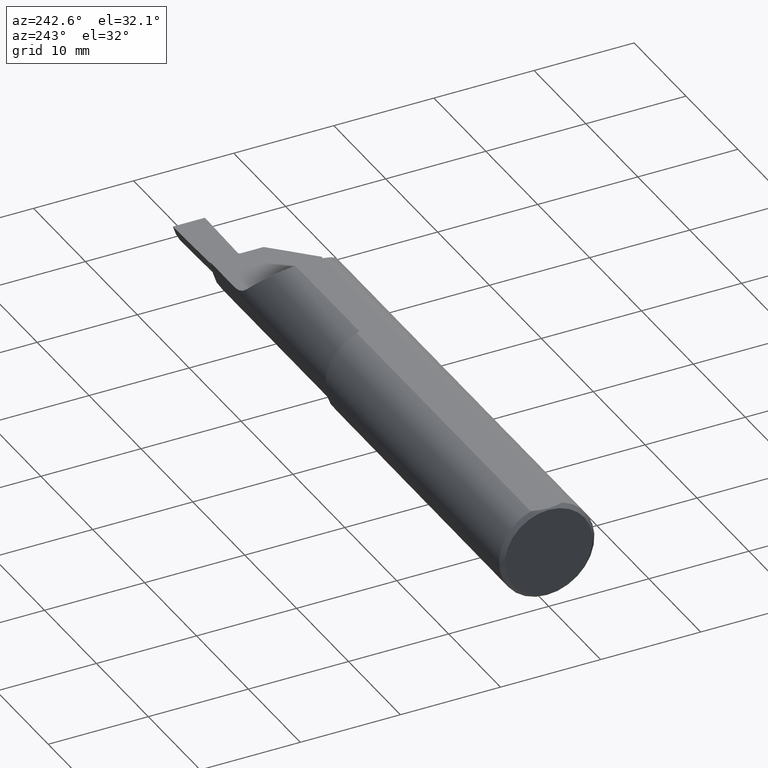
[diagram: clean part render]
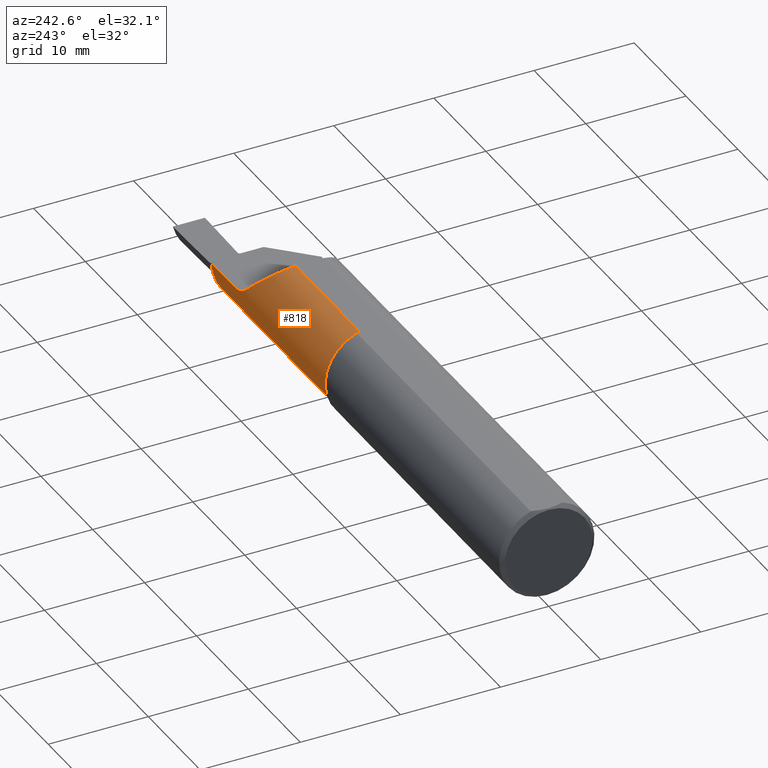
[diagram: same view with one face highlighted and labeled with its STEP entity id]
A machine part, auxiliary view. The second image highlights one B-rep face of the part: STEP entity #818.
In plain terms, the highlighted cylindrical surface (partial cylindrical patch) has radius 4.7625 mm, axis along (-1, -0, -0).
Its self-contained STEP definition (entity closure, byte-faithful):
#12 =( BOUNDED_CURVE ( )  B_SPLINE_CURVE ( 3, ( #585, #324, #521, #732 ),
 .UNSPECIFIED., .F., .F. ) 
 B_SPLINE_CURVE_WITH_KNOTS ( ( 4, 4 ),
 ( 0.2058125682894697273, 1.524309266450647016 ),
 .UNSPECIFIED. ) 
 CURVE ( )  GEOMETRIC_REPRESENTATION_ITEM ( )  RATIONAL_B_SPLINE_CURVE ( ( 1.000000000000000000, 0.8603019054232806662, 0.8603019054232806662, 1.000000000000000000 ) ) 
 REPRESENTATION_ITEM ( '' )  );
#17 = CARTESIAN_POINT ( 'NONE',  ( 1.988965638552542048, 0.1736665399885003735, 0.01662166336216465423 ) ) ;
#27 = LINE ( 'NONE', #706, #678 ) ;
#35 = LINE ( 'NONE', #567, #857 ) ;
#37 = VERTEX_POINT ( 'NONE', #488 ) ;
#47 = CARTESIAN_POINT ( 'NONE',  ( 2.225000000000020961, 0.1737315719203324227, -0.01520668941494147941 ) ) ;
#49 = CARTESIAN_POINT ( 'NONE',  ( 0.9958286716179119979, -0.01315076164021992781, 0.000000000000000000 ) ) ;
#64 = CARTESIAN_POINT ( 'NONE',  ( 2.224476490270001605, 0.1737269911545019085, -0.01526298465347420211 ) ) ;
#73 = CARTESIAN_POINT ( 'NONE',  ( 2.221522222016079962, 0.1730273118114304398, -0.02231477987633340154 ) ) ;
#75 = DIRECTION ( 'NONE',  ( 1.000000000000000000, 0.000000000000000000, 0.000000000000000000 ) ) ;
#78 = LINE ( 'NONE', #670, #344 ) ;
#98 =( BOUNDED_CURVE ( )  B_SPLINE_CURVE ( 3, ( #532, #210, #465, #677 ),
 .UNSPECIFIED., .F., .F. ) 
 B_SPLINE_CURVE_WITH_KNOTS ( ( 4, 4 ),
 ( 4.908913714375442439, 5.936585895212762587 ),
 .UNSPECIFIED. ) 
 CURVE ( )  GEOMETRIC_REPRESENTATION_ITEM ( )  RATIONAL_B_SPLINE_CURVE ( ( 1.000000000000000000, 0.9139102658081098562, 0.9139102658081098562, 1.000000000000000000 ) ) 
 REPRESENTATION_ITEM ( '' )  );
#99 = FACE_OUTER_BOUND ( 'NONE', #648, .T. ) ;
#101 = CARTESIAN_POINT ( 'NONE',  ( 1.340000000000000080, -0.01315076164021992781, 0.000000000000000000 ) ) ;
#131 = CARTESIAN_POINT ( 'NONE',  ( 2.224075113363942258, 0.1736934872265989971, -0.01567319864418825412 ) ) ;
#137 = ORIENTED_EDGE ( 'NONE', *, *, #590, .T. ) ;
#150 = CARTESIAN_POINT ( 'NONE',  ( 1.963388347648318710, 0.1707400671470789555, 0.03661165235168143545 ) ) ;
#158 = CARTESIAN_POINT ( 'NONE',  ( 1.340000000000000080, 0.05054325299224017576, 0.1763500000000000068 ) ) ;
#160 = DIRECTION ( 'NONE',  ( 0.000000000000000000, 0.000000000000000000, 1.000000000000000000 ) ) ;
#173 = CARTESIAN_POINT ( 'NONE',  ( 2.225000000000000089, 0.1743492383597801954, 0.000000000000000000 ) ) ;
#210 = CARTESIAN_POINT ( 'NONE',  ( 1.897454588124415586, 0.1576130183548815344, 0.1025454118755840249 ) ) ;
#221 = VERTEX_POINT ( 'NONE', #647 ) ;
#235 = ORIENTED_EDGE ( 'NONE', *, *, #524, .T. ) ;
#238 = VERTEX_POINT ( 'NONE', #661 ) ;
#244 = DIRECTION ( 'NONE',  ( -1.000000000000000000, -0.000000000000000000, -0.000000000000000000 ) ) ;
#265 = CARTESIAN_POINT ( 'NONE',  ( 2.222298499799074012, 0.1733515975356395844, -0.01934201723226082817 ) ) ;
#268 = VERTEX_POINT ( 'NONE', #158 ) ;
#269 = CARTESIAN_POINT ( 'NONE',  ( 1.963388347648318710, 0.1707400671470789555, 0.03661165235168143545 ) ) ;
#275 = VERTEX_POINT ( 'NONE', #150 ) ;
#293 = ORIENTED_EDGE ( 'NONE', *, *, #739, .F. ) ;
#303 = CARTESIAN_POINT ( 'NONE',  ( 2.225000000000020961, 0.1737315719203324227, -0.01520668941494147941 ) ) ;
#310 = DIRECTION ( 'NONE',  ( -1.000000000000000000, -0.000000000000000000, -0.000000000000000000 ) ) ;
#324 = CARTESIAN_POINT ( 'NONE',  ( 2.220570820707118198, 0.1522041806097133576, -0.1254379557757593355 ) ) ;
#339 = CARTESIAN_POINT ( 'NONE',  ( 2.011402846495882635, 0.1742657643842316917, 0.006416841385945341175 ) ) ;
#344 = VECTOR ( 'NONE', #75, 39.37007874015748143 ) ;
#352 = VERTEX_POINT ( 'NONE', #831 ) ;
#353 = EDGE_CURVE ( 'NONE', #37, #221, #35, .T. ) ;
#378 = CARTESIAN_POINT ( 'NONE',  ( 2.220253349435743928, 0.1703920975656307568, -0.03831799622294082552 ) ) ;
#391 = VERTEX_POINT ( 'NONE', #826 ) ;
#396 = CARTESIAN_POINT ( 'NONE',  ( 2.220238758154331915, 0.1712280315178650869, -0.03431388006802354312 ) ) ;
#397 = ORIENTED_EDGE ( 'NONE', *, *, #688, .T. ) ;
#403 = CARTESIAN_POINT ( 'NONE',  ( 1.975456747076115072, 0.1726394736848242961, 0.02567045653326192542 ) ) ;
#411 = ORIENTED_EDGE ( 'NONE', *, *, #741, .T. ) ;
#412 = CARTESIAN_POINT ( 'NONE',  ( 2.019197208109889896, 0.1743125433629941212, 0.004042964882075225815 ) ) ;
#435 = CYLINDRICAL_SURFACE ( 'NONE', #445, 0.1875000000000001110 ) ;
#441 = EDGE_CURVE ( 'NONE', #352, #477, #27, .T. ) ;
#442 = AXIS2_PLACEMENT_3D ( 'NONE', #101, #244, #501 ) ;
#443 = CARTESIAN_POINT ( 'NONE',  ( 2.221193869122648934, 0.1727775063380640463, -0.02431051541404595506 ) ) ;
#445 = AXIS2_PLACEMENT_3D ( 'NONE', #49, #310, #505 ) ;
#452 = ORIENTED_EDGE ( 'NONE', *, *, #473, .F. ) ;
#456 = ORIENTED_EDGE ( 'NONE', *, *, #353, .T. ) ;
#465 = CARTESIAN_POINT ( 'NONE',  ( 1.846487386027261035, 0.1137732605392144519, 0.1535126139727385208 ) ) ;
#470 = VERTEX_POINT ( 'NONE', #303 ) ;
#473 = EDGE_CURVE ( 'NONE', #268, #221, #507, .T. ) ;
#477 = VERTEX_POINT ( 'NONE', #173 ) ;
#488 = CARTESIAN_POINT ( 'NONE',  ( 2.223305012754634102, -0.004437576883722572918, -0.1872974383471384674 ) ) ;
#499 = EDGE_CURVE ( 'NONE', #477, #470, #666, .T. ) ;
#501 = DIRECTION ( 'NONE',  ( 0.000000000000000000, 0.000000000000000000, 1.000000000000000000 ) ) ;
#505 = DIRECTION ( 'NONE',  ( 0.000000000000000000, 0.000000000000000000, 1.000000000000000000 ) ) ;
#507 = CIRCLE ( 'NONE', #442, 0.1875000000000001110 ) ;
#512 = B_SPLINE_CURVE_WITH_KNOTS ( 'NONE', 3,
 ( #269, #601, #403, #17, #802, #339, #412, #809, #745, #665 ),
 .UNSPECIFIED., .F., .F.,
 ( 4, 2, 2, 2, 4 ),
 ( 0.000000000000000000, 0.0006203411018093670914, 0.001240682203618734183, 0.001861023305428101274, 0.002481364407237468366 ),
 .UNSPECIFIED. ) ;
#520 = CARTESIAN_POINT ( 'NONE',  ( 2.222598177177773415, 0.1734499980872878377, -0.01836535642658498543 ) ) ;
#521 = CARTESIAN_POINT ( 'NONE',  ( 2.221753220862091815, 0.08446452109900753902, -0.1831616615217846189 ) ) ;
#524 = EDGE_CURVE ( 'NONE', #470, #238, #764, .T. ) ;
#532 = CARTESIAN_POINT ( 'NONE',  ( 1.963388347648318710, 0.1707400671470789555, 0.03661165235168143545 ) ) ;
#554 = DIRECTION ( 'NONE',  ( -1.000000000000000000, -0.000000000000000000, -0.000000000000000000 ) ) ;
#557 = ORIENTED_EDGE ( 'NONE', *, *, #499, .T. ) ;
#562 = DIRECTION ( 'NONE',  ( 1.000000000000000000, 0.000000000000000000, 0.000000000000000000 ) ) ;
#567 = CARTESIAN_POINT ( 'NONE',  ( 1.782499999999999973, -0.004437576883793249889, -0.1872974383471392168 ) ) ;
#585 = CARTESIAN_POINT ( 'NONE',  ( 2.220253349435743928, 0.1703920975656307568, -0.03831799622294082552 ) ) ;
#590 = EDGE_CURVE ( 'NONE', #238, #37, #12, .T. ) ;
#601 = CARTESIAN_POINT ( 'NONE',  ( 1.969175886172399359, 0.1718923342275688881, 0.03082411382760028365 ) ) ;
#603 = CARTESIAN_POINT ( 'NONE',  ( 2.220429750505789723, 0.1719280929418138815, -0.03030438184498625981 ) ) ;
#647 = CARTESIAN_POINT ( 'NONE',  ( 1.340000000000000080, -0.004437576883793904747, -0.1872974383471392446 ) ) ;
#648 = EDGE_LOOP ( 'NONE', ( #411, #293, #397, #748, #557, #235, #137, #456, #452 ) ) ;
#661 = CARTESIAN_POINT ( 'NONE',  ( 2.220253349435743928, 0.1703920975656307568, -0.03831799622294082552 ) ) ;
#665 = CARTESIAN_POINT ( 'NONE',  ( 2.051776695296636976, 0.1743492383597801954, 0.000000000000000000 ) ) ;
#666 = CIRCLE ( 'NONE', #782, 0.1875000000000001110 ) ;
#668 = CARTESIAN_POINT ( 'NONE',  ( 2.223221956714867442, 0.1735808037041218221, -0.01696444711570428351 ) ) ;
#670 = CARTESIAN_POINT ( 'NONE',  ( 0.9958286716179119979, 0.05054325299224023127, 0.1763499999999999790 ) ) ;
#677 = CARTESIAN_POINT ( 'NONE',  ( 1.823649999999999771, 0.05054325299224035617, 0.1763499999999999790 ) ) ;
#678 = VECTOR ( 'NONE', #562, 39.37007874015748143 ) ;
#688 = EDGE_CURVE ( 'NONE', #275, #352, #512, .T. ) ;
#706 = CARTESIAN_POINT ( 'NONE',  ( 0.9958286716179119979, 0.1743492383597801954, 0.000000000000000000 ) ) ;
#732 = CARTESIAN_POINT ( 'NONE',  ( 2.223305012754634102, -0.004437576883722572918, -0.1872974383471384674 ) ) ;
#734 = CARTESIAN_POINT ( 'NONE',  ( 2.223461218693192354, 0.1736222206641906685, -0.01650077487460190409 ) ) ;
#739 = EDGE_CURVE ( 'NONE', #275, #391, #98, .T. ) ;
#741 = EDGE_CURVE ( 'NONE', #268, #391, #78, .T. ) ;
#745 = CARTESIAN_POINT ( 'NONE',  ( 2.043518208465806119, 0.1743492383597801954, 2.337677543406552558E-17 ) ) ;
#748 = ORIENTED_EDGE ( 'NONE', *, *, #441, .T. ) ;
#760 = DIRECTION ( 'NONE',  ( -1.000000000000000000, -0.000000000000000000, -0.000000000000000000 ) ) ;
#762 = CARTESIAN_POINT ( 'NONE',  ( 2.225000000000000089, -0.01315076164021992781, 0.000000000000000000 ) ) ;
#764 = B_SPLINE_CURVE_WITH_KNOTS ( 'NONE', 3,
 ( #47, #64, #131, #734, #668, #520, #265, #73, #443, #603, #396, #378 ),
 .UNSPECIFIED., .F., .F.,
 ( 4, 2, 2, 2, 2, 4 ),
 ( 1.978481013411717769E-07, 3.970233946451197485E-05, 7.920683082768277506E-05, 0.0001582158135540331304, 0.0003162337790067338140, 0.0006322697099121379460 ),
 .UNSPECIFIED. ) ;
#782 = AXIS2_PLACEMENT_3D ( 'NONE', #762, #554, #160 ) ;
#802 = CARTESIAN_POINT ( 'NONE',  ( 1.996282164411133930, 0.1739453693091478070, 0.01269519059421281813 ) ) ;
#809 = CARTESIAN_POINT ( 'NONE',  ( 2.035252298051418052, 0.1743543119172814015, 0.0008268482096370641460 ) ) ;
#818 = ADVANCED_FACE ( 'NONE', ( #99 ), #435, .T. ) ;
#826 = CARTESIAN_POINT ( 'NONE',  ( 1.823649999999999771, 0.05054325299224035617, 0.1763499999999999790 ) ) ;
#831 = CARTESIAN_POINT ( 'NONE',  ( 2.051776695296636976, 0.1743492383597801954, 0.000000000000000000 ) ) ;
#857 = VECTOR ( 'NONE', #760, 39.37007874015748143 ) ;